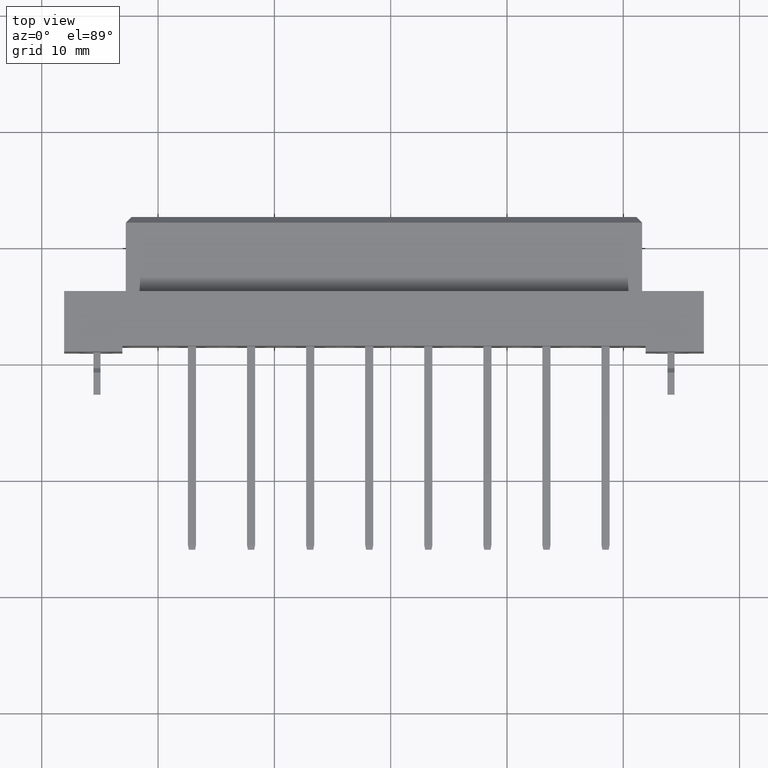
[diagram: clean part render]
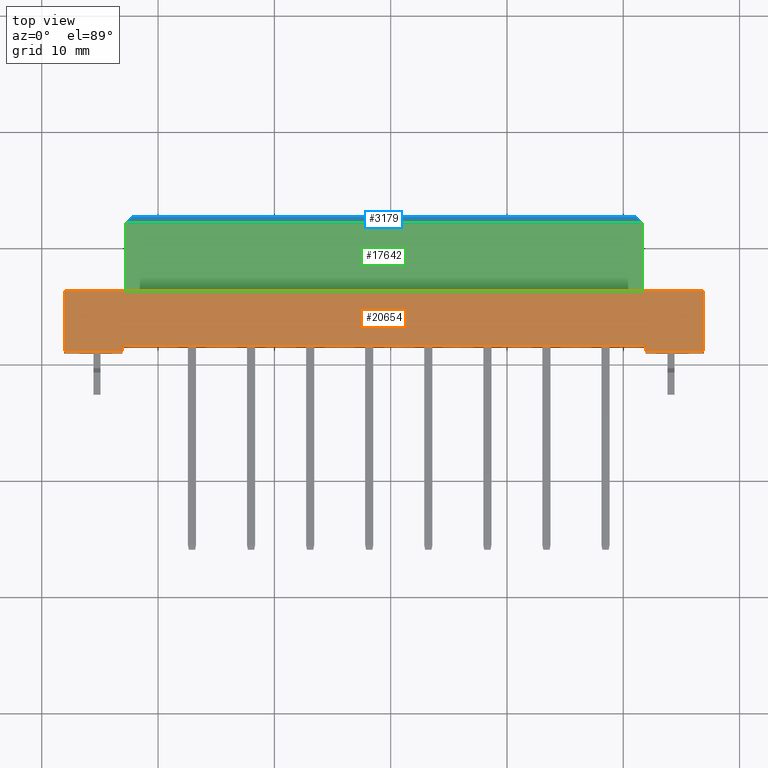
[diagram: same view with three faces highlighted in distinct colors, each labeled with its STEP entity id]
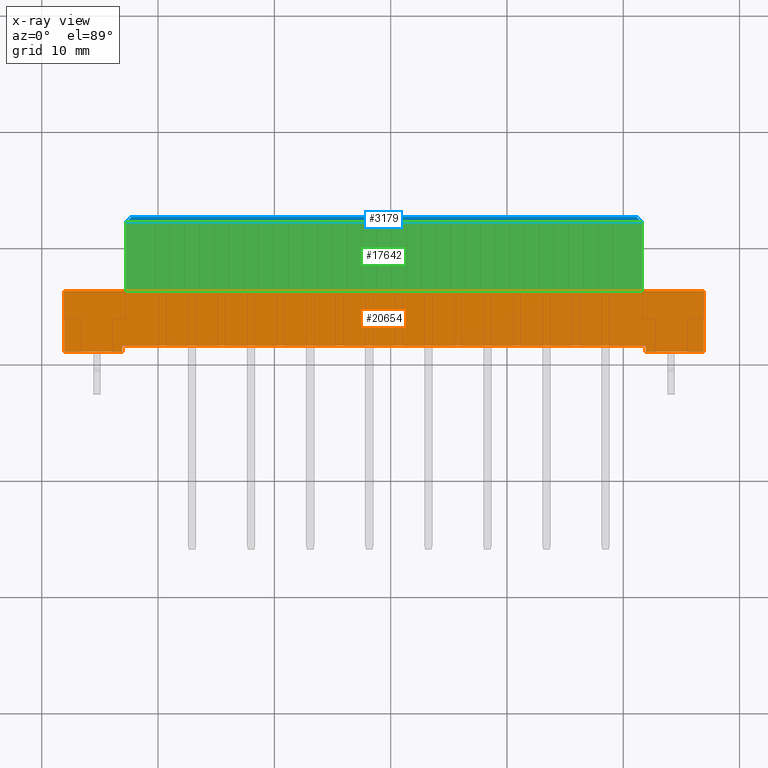
[diagram: x-ray of the same camera — body ghosted, the three highlighted faces saturated]
A machine part, top view with three faces highlighted in distinct colors.
The next image is the same camera in x-ray (body ghosted, the three faces saturated) — at least one of them is partly hidden behind the body in this view.
Their STEP definitions:

[orange] entity #20654 — the highlighted planar face has unit normal (0, 0, 1).
#43 = VERTEX_POINT ( 'NONE', #7444 ) ;
#1182 = DIRECTION ( 'NONE',  ( 0.0000000000000000000, 1.000000000000000000, 0.0000000000000000000 ) ) ;
#1209 = ORIENTED_EDGE ( 'NONE', *, *, #15958, .F. ) ;
#1355 = VERTEX_POINT ( 'NONE', #19065 ) ;
#1601 = LINE ( 'NONE', #7981, #5643 ) ;
#2324 = CARTESIAN_POINT ( 'NONE',  ( -27.50000000000000355, -11.59999999999999964, 5.299999999999999822 ) ) ;
#2594 = VERTEX_POINT ( 'NONE', #5157 ) ;
#2812 = DIRECTION ( 'NONE',  ( -0.0000000000000000000, -1.000000000000000000, -6.123031769111886291E-17 ) ) ;
#3192 = EDGE_LOOP ( 'NONE', ( #16460, #11836, #18606, #1209, #17081, #12286, #7628, #15953 ) ) ;
#3263 = DIRECTION ( 'NONE',  ( 1.000000000000000000, 0.0000000000000000000, -0.0000000000000000000 ) ) ;
#3578 = PLANE ( 'NONE',  #11953 ) ;
#3678 = EDGE_CURVE ( 'NONE', #2594, #5153, #1601, .T. ) ;
#4572 = LINE ( 'NONE', #19019, #15261 ) ;
#4893 = CARTESIAN_POINT ( 'NONE',  ( -27.50000000000000355, -6.400000000000001243, 5.299999999999999822 ) ) ;
#5153 = VERTEX_POINT ( 'NONE', #18260 ) ;
#5157 = CARTESIAN_POINT ( 'NONE',  ( 22.50000000000001421, -11.09999999999999787, 5.300000000000009592 ) ) ;
#5372 = DIRECTION ( 'NONE',  ( 1.000000000000000000, 0.0000000000000000000, 0.0000000000000000000 ) ) ;
#5643 = VECTOR ( 'NONE', #14379, 1000.000000000000000 ) ;
#5709 = EDGE_CURVE ( 'NONE', #43, #9664, #9510, .T. ) ;
#5780 = DIRECTION ( 'NONE',  ( 1.000000000000000000, 0.0000000000000000000, 0.0000000000000000000 ) ) ;
#6194 = LINE ( 'NONE', #13959, #13092 ) ;
#7011 = EDGE_CURVE ( 'NONE', #18477, #1355, #6194, .T. ) ;
#7171 = VECTOR ( 'NONE', #5372, 1000.000000000000000 ) ;
#7202 = VECTOR ( 'NONE', #2812, 1000.000000000000000 ) ;
#7255 = LINE ( 'NONE', #2324, #7171 ) ;
#7444 = CARTESIAN_POINT ( 'NONE',  ( -22.50000000000001421, -11.09999999999999787, 5.300000000000009592 ) ) ;
#7628 = ORIENTED_EDGE ( 'NONE', *, *, #5709, .F. ) ;
#7975 = VERTEX_POINT ( 'NONE', #4893 ) ;
#7981 = CARTESIAN_POINT ( 'NONE',  ( 22.50000000000001421, -11.09999999999999787, 5.300000000000009592 ) ) ;
#7996 = VERTEX_POINT ( 'NONE', #19655 ) ;
#8927 = LINE ( 'NONE', #10900, #14538 ) ;
#9259 = DIRECTION ( 'NONE',  ( 0.0000000000000000000, 1.000000000000000000, 0.0000000000000000000 ) ) ;
#9280 = CARTESIAN_POINT ( 'NONE',  ( 27.49999999999999645, -11.59999999999999964, 5.299999999999999822 ) ) ;
#9510 = LINE ( 'NONE', #14229, #7202 ) ;
#9664 = VERTEX_POINT ( 'NONE', #17541 ) ;
#9875 = VECTOR ( 'NONE', #9259, 1000.000000000000000 ) ;
#10777 = VECTOR ( 'NONE', #19570, 1000.000000000000000 ) ;
#10900 = CARTESIAN_POINT ( 'NONE',  ( -27.50000000000000355, -6.400000000000001243, 5.299999999999999822 ) ) ;
#11428 = FACE_OUTER_BOUND ( 'NONE', #3192, .T. ) ;
#11836 = ORIENTED_EDGE ( 'NONE', *, *, #13286, .T. ) ;
#11953 = AXIS2_PLACEMENT_3D ( 'NONE', #14478, #12905, #3263 ) ;
#12286 = ORIENTED_EDGE ( 'NONE', *, *, #15759, .T. ) ;
#12905 = DIRECTION ( 'NONE',  ( 0.0000000000000000000, 0.0000000000000000000, 1.000000000000000000 ) ) ;
#13067 = LINE ( 'NONE', #19464, #10777 ) ;
#13092 = VECTOR ( 'NONE', #1182, 1000.000000000000000 ) ;
#13286 = EDGE_CURVE ( 'NONE', #5153, #18477, #4572, .T. ) ;
#13959 = CARTESIAN_POINT ( 'NONE',  ( 27.49999999999999645, -11.59999999999999964, 5.299999999999999822 ) ) ;
#14229 = CARTESIAN_POINT ( 'NONE',  ( -22.50000000000001421, -11.09999999999999787, 5.300000000000009592 ) ) ;
#14379 = DIRECTION ( 'NONE',  ( -0.0000000000000000000, -1.000000000000000000, -6.123031769111886291E-17 ) ) ;
#14478 = CARTESIAN_POINT ( 'NONE',  ( -27.50000000000000355, -11.59999999999999964, 5.299999999999999822 ) ) ;
#14538 = VECTOR ( 'NONE', #5780, 1000.000000000000000 ) ;
#15261 = VECTOR ( 'NONE', #20688, 1000.000000000000000 ) ;
#15759 = EDGE_CURVE ( 'NONE', #7996, #9664, #7255, .T. ) ;
#15953 = ORIENTED_EDGE ( 'NONE', *, *, #18266, .F. ) ;
#15958 = EDGE_CURVE ( 'NONE', #7975, #1355, #8927, .T. ) ;
#16460 = ORIENTED_EDGE ( 'NONE', *, *, #3678, .T. ) ;
#16518 = EDGE_CURVE ( 'NONE', #7996, #7975, #17015, .T. ) ;
#17015 = LINE ( 'NONE', #17421, #9875 ) ;
#17081 = ORIENTED_EDGE ( 'NONE', *, *, #16518, .F. ) ;
#17421 = CARTESIAN_POINT ( 'NONE',  ( -27.50000000000000355, -11.59999999999999964, 5.299999999999999822 ) ) ;
#17541 = CARTESIAN_POINT ( 'NONE',  ( -22.50000000000001421, -11.59999999999999964, 5.299999999999999822 ) ) ;
#18260 = CARTESIAN_POINT ( 'NONE',  ( 22.50000000000001421, -11.59999999999999964, 5.300000000000009592 ) ) ;
#18266 = EDGE_CURVE ( 'NONE', #2594, #43, #13067, .T. ) ;
#18477 = VERTEX_POINT ( 'NONE', #9280 ) ;
#18606 = ORIENTED_EDGE ( 'NONE', *, *, #7011, .T. ) ;
#19019 = CARTESIAN_POINT ( 'NONE',  ( -27.50000000000000355, -11.59999999999999964, 5.299999999999999822 ) ) ;
#19065 = CARTESIAN_POINT ( 'NONE',  ( 27.49999999999999645, -6.400000000000001243, 5.299999999999999822 ) ) ;
#19464 = CARTESIAN_POINT ( 'NONE',  ( -22.50000000000001421, -11.09999999999999787, 5.300000000000009592 ) ) ;
#19570 = DIRECTION ( 'NONE',  ( -1.000000000000000000, -0.0000000000000000000, -0.0000000000000000000 ) ) ;
#19655 = CARTESIAN_POINT ( 'NONE',  ( -27.50000000000000355, -11.59999999999999964, 5.299999999999999822 ) ) ;
#20654 = ADVANCED_FACE ( 'NONE', ( #11428 ), #3578, .T. ) ;
#20688 = DIRECTION ( 'NONE',  ( 1.000000000000000000, 0.0000000000000000000, 0.0000000000000000000 ) ) ;

[blue] entity #3179 — the highlighted planar face has unit normal (0, 0.7071, 0.7071).
#1370 = DIRECTION ( 'NONE',  ( 0.5773502691896257311, -0.5773502691896257311, 0.5773502691896257311 ) ) ;
#1510 = LINE ( 'NONE', #7890, #19861 ) ;
#1628 = FACE_OUTER_BOUND ( 'NONE', #20587, .T. ) ;
#2007 = AXIS2_PLACEMENT_3D ( 'NONE', #15771, #7907, #14194 ) ;
#3179 = ADVANCED_FACE ( 'NONE', ( #1628 ), #19115, .T. ) ;
#3389 = CARTESIAN_POINT ( 'NONE',  ( 22.19999999999999218, 0.0000000000000000000, 3.749999999999986677 ) ) ;
#3775 = CARTESIAN_POINT ( 'NONE',  ( -22.19999999999999218, -0.5000000000000143219, 4.250000000000000888 ) ) ;
#4343 = VERTEX_POINT ( 'NONE', #3775 ) ;
#4665 = CARTESIAN_POINT ( 'NONE',  ( -21.69999999999997797, 0.0000000000000000000, 3.749999999999986677 ) ) ;
#4971 = DIRECTION ( 'NONE',  ( 1.000000000000000000, 0.0000000000000000000, -0.0000000000000000000 ) ) ;
#5105 = LINE ( 'NONE', #8335, #14117 ) ;
#5978 = LINE ( 'NONE', #12273, #10513 ) ;
#7246 = ORIENTED_EDGE ( 'NONE', *, *, #8123, .F. ) ;
#7787 = CARTESIAN_POINT ( 'NONE',  ( 21.69999999999997797, 0.0000000000000000000, 3.749999999999986677 ) ) ;
#7890 = CARTESIAN_POINT ( 'NONE',  ( -5.299999999999985612, 16.39999999999999147, -12.65000000000000568 ) ) ;
#7907 = DIRECTION ( 'NONE',  ( 0.0000000000000000000, 0.7071067811865475727, 0.7071067811865475727 ) ) ;
#8123 = EDGE_CURVE ( 'NONE', #12946, #4343, #5105, .T. ) ;
#8335 = CARTESIAN_POINT ( 'NONE',  ( -22.19999999999999218, -0.5000000000000143219, 4.250000000000000888 ) ) ;
#9575 = LINE ( 'NONE', #3389, #17822 ) ;
#10513 = VECTOR ( 'NONE', #1370, 999.9999999999998863 ) ;
#12273 = CARTESIAN_POINT ( 'NONE',  ( 23.63333333333331510, -1.933333333333340232, 5.683333333333326465 ) ) ;
#12946 = VERTEX_POINT ( 'NONE', #17682 ) ;
#13303 = VERTEX_POINT ( 'NONE', #4665 ) ;
#14117 = VECTOR ( 'NONE', #16316, 1000.000000000000000 ) ;
#14180 = DIRECTION ( 'NONE',  ( -0.5773502691896257311, -0.5773502691896257311, 0.5773502691896257311 ) ) ;
#14194 = DIRECTION ( 'NONE',  ( 0.0000000000000000000, -0.7071067811865474617, 0.7071067811865474617 ) ) ;
#15771 = CARTESIAN_POINT ( 'NONE',  ( 27.49999999999999645, 0.0000000000000000000, 3.749999999999986677 ) ) ;
#15851 = EDGE_CURVE ( 'NONE', #20148, #12946, #5978, .T. ) ;
#16316 = DIRECTION ( 'NONE',  ( -1.000000000000000000, 0.0000000000000000000, 0.0000000000000000000 ) ) ;
#16934 = ORIENTED_EDGE ( 'NONE', *, *, #15851, .F. ) ;
#17244 = ORIENTED_EDGE ( 'NONE', *, *, #20161, .T. ) ;
#17682 = CARTESIAN_POINT ( 'NONE',  ( 22.19999999999999218, -0.5000000000000143219, 4.250000000000000888 ) ) ;
#17822 = VECTOR ( 'NONE', #4971, 1000.000000000000000 ) ;
#18334 = ORIENTED_EDGE ( 'NONE', *, *, #18998, .F. ) ;
#18998 = EDGE_CURVE ( 'NONE', #13303, #20148, #9575, .T. ) ;
#19115 = PLANE ( 'NONE',  #2007 ) ;
#19861 = VECTOR ( 'NONE', #14180, 999.9999999999998863 ) ;
#20148 = VERTEX_POINT ( 'NONE', #7787 ) ;
#20161 = EDGE_CURVE ( 'NONE', #13303, #4343, #1510, .T. ) ;
#20587 = EDGE_LOOP ( 'NONE', ( #17244, #7246, #16934, #18334 ) ) ;

[green] entity #17642 — the highlighted planar face has unit normal (0, 0, 1).
#813 = CARTESIAN_POINT ( 'NONE',  ( 22.19999999999999218, -6.400000000000001243, 4.250000000000000888 ) ) ;
#1967 = EDGE_LOOP ( 'NONE', ( #5239, #8907, #11391, #20336 ) ) ;
#2288 = PLANE ( 'NONE',  #16792 ) ;
#2517 = VECTOR ( 'NONE', #11505, 1000.000000000000000 ) ;
#2522 = EDGE_CURVE ( 'NONE', #4694, #12946, #3054, .T. ) ;
#3054 = LINE ( 'NONE', #15846, #16214 ) ;
#3546 = DIRECTION ( 'NONE',  ( 0.0000000000000000000, 0.0000000000000000000, 1.000000000000000000 ) ) ;
#3752 = CARTESIAN_POINT ( 'NONE',  ( 22.19999999999999218, -6.400000000000001243, 4.250000000000000888 ) ) ;
#3775 = CARTESIAN_POINT ( 'NONE',  ( -22.19999999999999218, -0.5000000000000143219, 4.250000000000000888 ) ) ;
#4343 = VERTEX_POINT ( 'NONE', #3775 ) ;
#4694 = VERTEX_POINT ( 'NONE', #813 ) ;
#5105 = LINE ( 'NONE', #8335, #14117 ) ;
#5239 = ORIENTED_EDGE ( 'NONE', *, *, #2522, .T. ) ;
#5429 = FACE_OUTER_BOUND ( 'NONE', #1967, .T. ) ;
#5733 = EDGE_CURVE ( 'NONE', #14058, #4343, #11611, .T. ) ;
#7000 = LINE ( 'NONE', #13380, #20452 ) ;
#8123 = EDGE_CURVE ( 'NONE', #12946, #4343, #5105, .T. ) ;
#8335 = CARTESIAN_POINT ( 'NONE',  ( -22.19999999999999218, -0.5000000000000143219, 4.250000000000000888 ) ) ;
#8907 = ORIENTED_EDGE ( 'NONE', *, *, #8123, .T. ) ;
#11391 = ORIENTED_EDGE ( 'NONE', *, *, #5733, .F. ) ;
#11505 = DIRECTION ( 'NONE',  ( -0.0000000000000000000, 1.000000000000000000, -0.0000000000000000000 ) ) ;
#11611 = LINE ( 'NONE', #20712, #2517 ) ;
#12559 = CARTESIAN_POINT ( 'NONE',  ( -22.19999999999999218, -6.400000000000001243, 4.250000000000000888 ) ) ;
#12946 = VERTEX_POINT ( 'NONE', #17682 ) ;
#13380 = CARTESIAN_POINT ( 'NONE',  ( 22.19999999999999218, -6.400000000000001243, 4.250000000000000888 ) ) ;
#14058 = VERTEX_POINT ( 'NONE', #12559 ) ;
#14117 = VECTOR ( 'NONE', #16316, 1000.000000000000000 ) ;
#14648 = DIRECTION ( 'NONE',  ( 1.000000000000000000, -0.0000000000000000000, -0.0000000000000000000 ) ) ;
#15846 = CARTESIAN_POINT ( 'NONE',  ( 22.19999999999999218, -6.400000000000001243, 4.250000000000000888 ) ) ;
#16214 = VECTOR ( 'NONE', #19084, 1000.000000000000000 ) ;
#16316 = DIRECTION ( 'NONE',  ( -1.000000000000000000, 0.0000000000000000000, 0.0000000000000000000 ) ) ;
#16792 = AXIS2_PLACEMENT_3D ( 'NONE', #3752, #3546, #17898 ) ;
#17629 = EDGE_CURVE ( 'NONE', #14058, #4694, #7000, .T. ) ;
#17642 = ADVANCED_FACE ( 'NONE', ( #5429 ), #2288, .T. ) ;
#17682 = CARTESIAN_POINT ( 'NONE',  ( 22.19999999999999218, -0.5000000000000143219, 4.250000000000000888 ) ) ;
#17898 = DIRECTION ( 'NONE',  ( 1.000000000000000000, 0.0000000000000000000, -0.0000000000000000000 ) ) ;
#19084 = DIRECTION ( 'NONE',  ( -0.0000000000000000000, 1.000000000000000000, -0.0000000000000000000 ) ) ;
#20336 = ORIENTED_EDGE ( 'NONE', *, *, #17629, .T. ) ;
#20452 = VECTOR ( 'NONE', #14648, 1000.000000000000000 ) ;
#20712 = CARTESIAN_POINT ( 'NONE',  ( -22.19999999999999218, -6.400000000000001243, 4.250000000000000888 ) ) ;